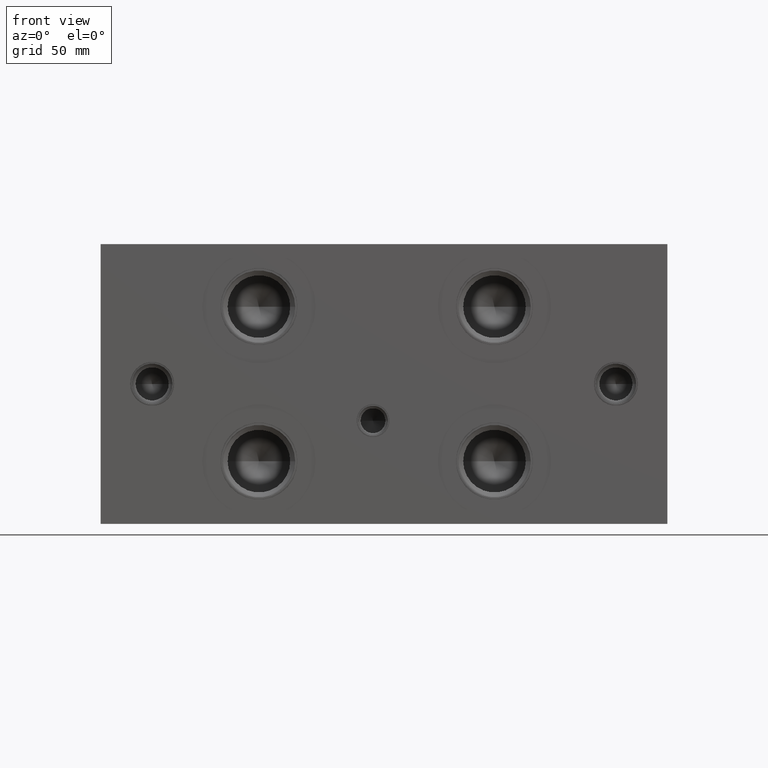
[diagram: clean part render]
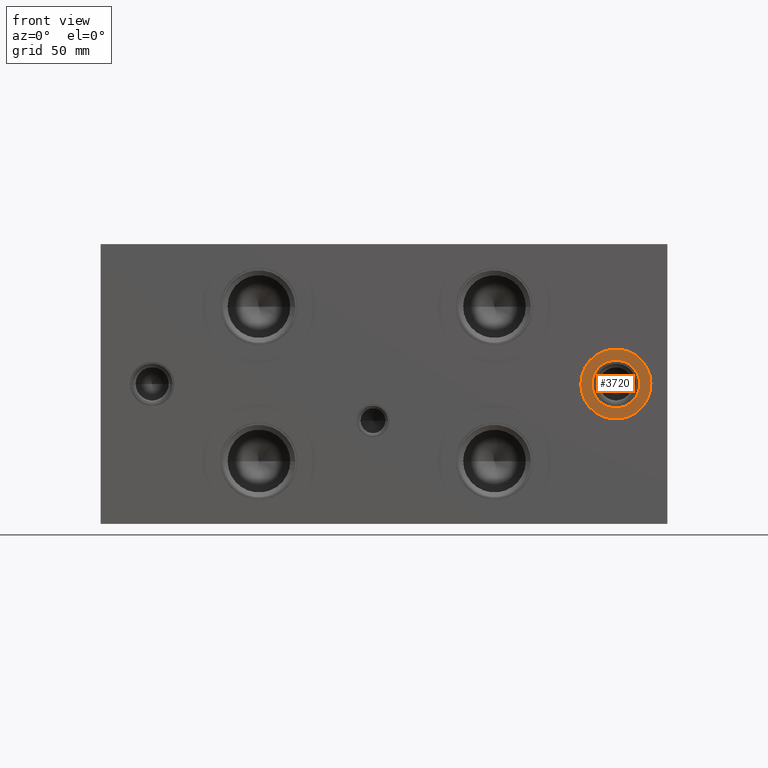
[diagram: same view with one face highlighted and labeled with its STEP entity id]
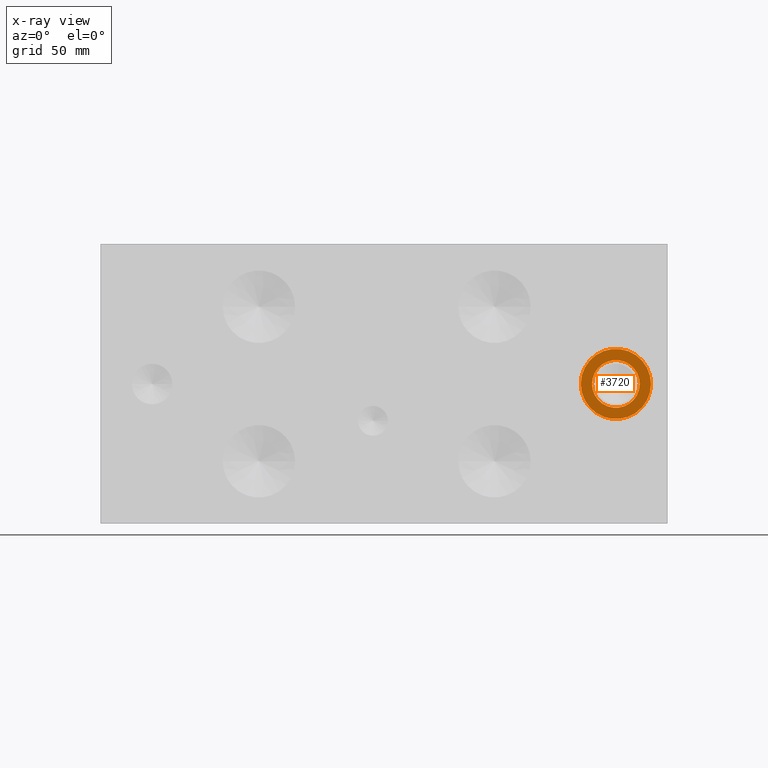
[diagram: x-ray of the same camera — body ghosted, the highlighted face saturated]
A machine part, front view. The second image highlights one B-rep face of the part: STEP entity #3720.
The next image is the same camera in x-ray: the body ghosted, the highlighted face saturated — about 0% of this face is hidden behind the body in this view.
In plain terms, the highlighted planar face has unit normal (0, 1, 0).
Its self-contained STEP definition (entity closure, byte-faithful):
#3689=CARTESIAN_POINT('',(9.345499999999998,0.030000000000000,2.375000000000000));
#3690=VERTEX_POINT('',#3689);
#3691=CARTESIAN_POINT('',(8.749999999999998,0.030000000000000,2.375000000000000));
#3692=DIRECTION('',(0.0,1.0,0.0));
#3693=DIRECTION('',(-1.0,0.0,0.0));
#3694=AXIS2_PLACEMENT_3D('',#3691,#3692,#3693);
#3695=CIRCLE('',#3694,0.595500000000000);
#3696=EDGE_CURVE('',#3690,#3690,#3695,.T.);
#3701=CARTESIAN_POINT('',(8.749999999999998,0.030000000000000,2.375000000000000));
#3702=DIRECTION('',(0.0,1.0,0.0));
#3703=DIRECTION('',(0.0,0.0,1.0));
#3704=AXIS2_PLACEMENT_3D('',#3701,#3702,#3703);
#3705=PLANE('',#3704);
#3706=ORIENTED_EDGE('',*,*,#3696,.F.);
#3707=EDGE_LOOP('',(#3706));
#3708=FACE_OUTER_BOUND('',#3707,.T.);
#3709=CARTESIAN_POINT('',(9.155500000000000,0.030000000000000,2.375000000000000));
#3710=VERTEX_POINT('',#3709);
#3711=CARTESIAN_POINT('',(8.749999999999998,0.030000000000000,2.375000000000000));
#3712=DIRECTION('',(0.0,1.0,0.0));
#3713=DIRECTION('',(-1.0,0.0,0.0));
#3714=AXIS2_PLACEMENT_3D('',#3711,#3712,#3713);
#3715=CIRCLE('',#3714,0.405500000000000);
#3716=EDGE_CURVE('',#3710,#3710,#3715,.T.);
#3717=ORIENTED_EDGE('',*,*,#3716,.T.);
#3718=EDGE_LOOP('',(#3717));
#3719=FACE_BOUND('',#3718,.T.);
#3720=ADVANCED_FACE('',(#3708,#3719),#3705,.F.);